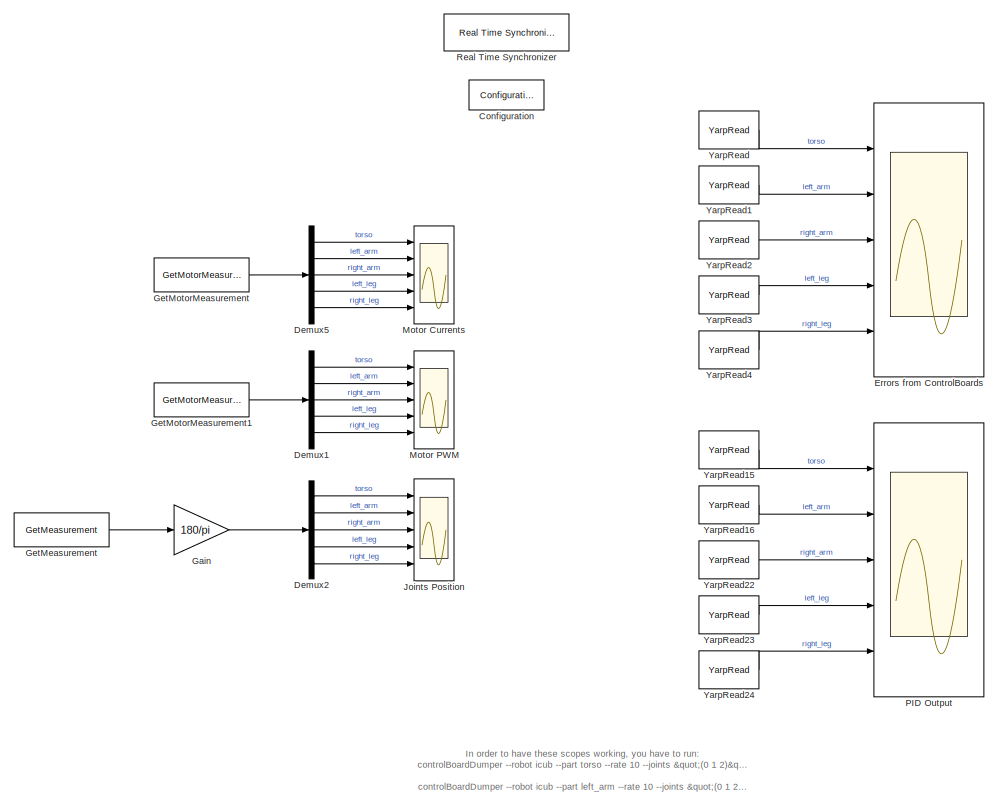
[diagram: root canvas - part 1/2, left side, full height]
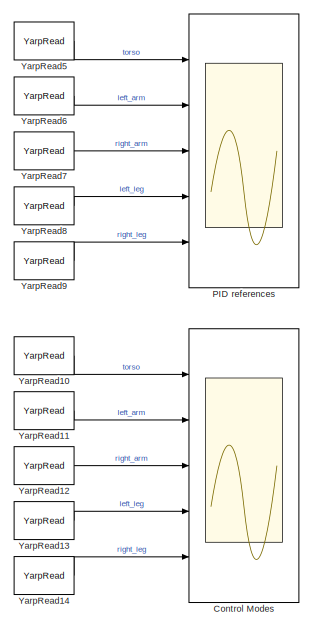
[diagram: root canvas - part 2/2, right side, full height]
MODEL debug_positionControl
KIND model
BLOCK [Reference] Configuration  REF=WBToolboxLibrary/Utilities/Configuration
  ConfigObject = 'WBTConfigRobot'
  ConfigSource = Mask
  ControlBoardsNames = {'torso','left_arm','right_arm','left_leg','right_leg'}
  ControlledJoints = {'torso_pitch','torso_roll','torso_yaw','l_shoulder_pitch','l_shoulder_roll','l_shoulder_yaw','l_elbow','r_shoulder_pitch','r_shoulder_roll','r_shoulder_yaw','r_elbow','l_hip_pitch','l_hip_roll','l_hip_yaw','l_knee','l_ankle_pitch','l_ankle_roll', 'r_hip_pitch','r_hip_roll','r_hip_yaw','r_knee','r_ankle_pitch','r_ankle_roll'}
  GravityVector = [0,0,-9.81]
  LocalName = 'WBT'
  Ports = []
  RTWMemSecDataConstants = Inherit from model
  RTWMemSecDataInternal = Inherit from model
  RTWMemSecDataParameters = Inherit from model
  RTWMemSecFuncExecute = Inherit from model
  RTWMemSecFuncInitTerm = Inherit from model
  RobotName = 'icub'
  SID = 9
  SourceBlock = WBToolboxLibrary/Utilities/Configuration
  SourceProductName = Whole Body Toolbox
  UrdfFile = 'model.urdf'
BLOCK [Scope] Control Modes
  Floating = off
  NumInputPorts = 5
  Ports = [5]
  SID = 50
  ScopeSpecificationString = Simulink.scopes.TimeScopeBlockCfg('CurrentConfiguration', extmgr.ConfigurationSet(extmgr.Configuration('Core','General UI',true),extmgr.Configuration('Core','Source UI',true),extmgr.Configuration('Sources','WiredSimulink',true,'DataLoggingVariableName','ControlModes','DataLogging',true,'DataLoggingSaveFormat','StructureWithTime'),extmgr.Configuration('Visuals','Time Domain',true,'SerializedDisplay...<+4114ch>
BLOCK [Demux] Demux1
  Outputs = [3,4,4,6,6]
  Ports = [1, 5]
  SID = 30
BLOCK [Demux] Demux2
  Outputs = [3,4,4,6,6]
  Ports = [1, 5]
  SID = 31
BLOCK [Demux] Demux5
  Outputs = [3,4,4,6,6]
  Ports = [1, 5]
  SID = 29
BLOCK [Scope] Errors from ControlBoards
  Floating = off
  NumInputPorts = 5
  Ports = [5]
  SID = 10
  ScopeSpecificationString = Simulink.scopes.TimeScopeBlockCfg('CurrentConfiguration', extmgr.ConfigurationSet(extmgr.Configuration('Core','General UI',true),extmgr.Configuration('Core','Source UI',true),extmgr.Configuration('Sources','WiredSimulink',true,'DataLoggingVariableName','ControlBoardsError','DataLogging',true,'DataLoggingSaveFormat','StructureWithTime'),extmgr.Configuration('Visuals','Time Domain',true,'SerializedD...<+4315ch>
BLOCK [Gain] Gain
  Gain = 180/pi
  SID = 43
BLOCK [Reference] GetMeasurement  REF=WBToolboxLibrary/States/GetMeasurement
  Ports = [0, 1]
  RTWMemSecDataConstants = Inherit from model
  RTWMemSecDataInternal = Inherit from model
  RTWMemSecDataParameters = Inherit from model
  RTWMemSecFuncExecute = Inherit from model
  RTWMemSecFuncInitTerm = Inherit from model
  SID = 7
  SourceBlock = WBToolboxLibrary/States/GetMeasurement
  SourceProductName = WholeBodyToolbox
  SourceType = GetMeasurement
  measuredType = Joints Position
BLOCK [Reference] GetMotorMeasurement  REF=WBToolboxLibrary/States/GetMotorMeasurement
  Ports = [0, 1]
  RTWMemSecDataConstants = Inherit from model
  RTWMemSecDataInternal = Inherit from model
  RTWMemSecDataParameters = Inherit from model
  RTWMemSecFuncExecute = Inherit from model
  RTWMemSecFuncInitTerm = Inherit from model
  SID = 3
  SourceBlock = WBToolboxLibrary/States/GetMotorMeasurement
  SourceProductName = WholeBodyToolbox
  SourceType = GetMeasurement
  measuredType = Motor Current
BLOCK [Reference] GetMotorMeasurement1  REF=WBToolboxLibrary/States/GetMotorMeasurement
  Ports = [0, 1]
  RTWMemSecDataConstants = Inherit from model
  RTWMemSecDataInternal = Inherit from model
  RTWMemSecDataParameters = Inherit from model
  RTWMemSecFuncExecute = Inherit from model
  RTWMemSecFuncInitTerm = Inherit from model
  SID = 4
  SourceBlock = WBToolboxLibrary/States/GetMotorMeasurement
  SourceProductName = WholeBodyToolbox
  SourceType = GetMeasurement
  measuredType = Motor PWM
BLOCK [Scope] Joints Position
  Floating = off
  NumInputPorts = 5
  Ports = [5]
  SID = 8
  ScopeSpecificationString = Simulink.scopes.TimeScopeBlockCfg('CurrentConfiguration', extmgr.ConfigurationSet(extmgr.Configuration('Core','General UI',true),extmgr.Configuration('Core','Source UI',true),extmgr.Configuration('Sources','WiredSimulink',true,'DataLoggingVariableName','JointsPosition','DataLogging',true,'DataLoggingSaveFormat','StructureWithTime'),extmgr.Configuration('Visuals','Time Domain',true,'SerializedDispl...<+4502ch>
BLOCK [Scope] Motor Currents
  Floating = off
  NumInputPorts = 5
  Ports = [5]
  SID = 5
  ScopeSpecificationString = Simulink.scopes.TimeScopeBlockCfg('CurrentConfiguration', extmgr.ConfigurationSet(extmgr.Configuration('Core','General UI',true),extmgr.Configuration('Core','Source UI',true),extmgr.Configuration('Sources','WiredSimulink',true,'DataLogging',true,'DataLoggingVariableName','MotorCurrent','DataLoggingSaveFormat','StructureWithTime'),extmgr.Configuration('Visuals','Time Domain',true,'SerializedDisplay...<+4485ch>
BLOCK [Scope] Motor PWM
  Floating = off
  NumInputPorts = 5
  Ports = [5]
  SID = 6
  ScopeSpecificationString = Simulink.scopes.TimeScopeBlockCfg('CurrentConfiguration', extmgr.ConfigurationSet(extmgr.Configuration('Core','General UI',true),extmgr.Configuration('Core','Source UI',true),extmgr.Configuration('Sources','WiredSimulink',true,'DataLoggingVariableName','MotorPwm','DataLogging',true,'DataLoggingSaveFormat','StructureWithTime'),extmgr.Configuration('Visuals','Time Domain',true,'SerializedDisplays',{...<+4802ch>
BLOCK [Scope] PID Output
  Floating = off
  NumInputPorts = 5
  Ports = [5]
  SID = 74
  ScopeSpecificationString = Simulink.scopes.TimeScopeBlockCfg('CurrentConfiguration', extmgr.ConfigurationSet(extmgr.Configuration('Core','General UI',true),extmgr.Configuration('Core','Source UI',true),extmgr.Configuration('Sources','WiredSimulink',true,'DataLoggingVariableName','PIDOutput','DataLogging',true,'DataLoggingSaveFormat','StructureWithTime'),extmgr.Configuration('Visuals','Time Domain',true,'SerializedDisplays',...<+4610ch>
BLOCK [Scope] PID references
  Floating = off
  NumInputPorts = 5
  Ports = [5]
  SID = 22
  ScopeSpecificationString = Simulink.scopes.TimeScopeBlockCfg('CurrentConfiguration', extmgr.ConfigurationSet(extmgr.Configuration('Core','General UI',true),extmgr.Configuration('Core','Source UI',true),extmgr.Configuration('Sources','WiredSimulink',true,'DataLoggingVariableName','PositionPIDReference','DataLogging',true,'DataLoggingSaveFormat','StructureWithTime'),extmgr.Configuration('Visuals','Time Domain',true,'Serialize...<+4182ch>
BLOCK [Reference] Real Time Synchronizer  REF=WBToolboxLibrary/Utilities/Real Time Synchronizer
  MultiThreadCoSim = auto
  Ports = []
  SID = 2
  SourceBlock = WBToolboxLibrary/Utilities/Real Time Synchronizer
  SourceProductName = Whole Body Toolbox
  SourceType = Real Time Synchronizer
  period = 0.01
BLOCK [Reference] YarpRead  REF=WBToolboxLibrary/Utilities/YarpRead
  MultiThreadCoSim = auto
  Ports = [0, 1]
  SID = 16
  SourceBlock = WBToolboxLibrary/Utilities/YarpRead
  SourceProductName = WholeBodyToolbox
  SourceType = YARP Read
  autoconnect = on
  blocking = off
  errorOnConnection = on
  portName = '/controlBoardDumper/torso/getPositionErrors'
  signalSize = 3
  timeout = 0.5
  timestamp = off
BLOCK [Reference] YarpRead1  REF=WBToolboxLibrary/Utilities/YarpRead
  MultiThreadCoSim = auto
  Ports = [0, 1]
  SID = 17
  SourceBlock = WBToolboxLibrary/Utilities/YarpRead
  SourceProductName = WholeBodyToolbox
  SourceType = YARP Read
  autoconnect = on
  blocking = off
  errorOnConnection = on
  portName = '/controlBoardDumper/left_arm/getPositionErrors'
  signalSize = 4
  timeout = 0.5
  timestamp = off
BLOCK [Reference] YarpRead10  REF=WBToolboxLibrary/Utilities/YarpRead
  MultiThreadCoSim = auto
  Ports = [0, 1]
  SID = 52
  SourceBlock = WBToolboxLibrary/Utilities/YarpRead
  SourceProductName = WholeBodyToolbox
  SourceType = YARP Read
  autoconnect = on
  blocking = off
  errorOnConnection = on
  portName = '/controlBoardDumper/torso/getControlModes'
  signalSize = 3
  timeout = 0.5
  timestamp = off
BLOCK [Reference] YarpRead11  REF=WBToolboxLibrary/Utilities/YarpRead
  MultiThreadCoSim = auto
  Ports = [0, 1]
  SID = 53
  SourceBlock = WBToolboxLibrary/Utilities/YarpRead
  SourceProductName = WholeBodyToolbox
  SourceType = YARP Read
  autoconnect = on
  blocking = off
  errorOnConnection = on
  portName = '/controlBoardDumper/left_arm/getControlModes'
  signalSize = 4
  timeout = 0.5
  timestamp = off
BLOCK [Reference] YarpRead12  REF=WBToolboxLibrary/Utilities/YarpRead
  MultiThreadCoSim = auto
  Ports = [0, 1]
  SID = 54
  SourceBlock = WBToolboxLibrary/Utilities/YarpRead
  SourceProductName = WholeBodyToolbox
  SourceType = YARP Read
  autoconnect = on
  blocking = off
  errorOnConnection = on
  portName = '/controlBoardDumper/right_arm/getControlModes'
  signalSize = 4
  timeout = 0.5
  timestamp = off
BLOCK [Reference] YarpRead13  REF=WBToolboxLibrary/Utilities/YarpRead
  MultiThreadCoSim = auto
  Ports = [0, 1]
  SID = 55
  SourceBlock = WBToolboxLibrary/Utilities/YarpRead
  SourceProductName = WholeBodyToolbox
  SourceType = YARP Read
  autoconnect = on
  blocking = off
  errorOnConnection = on
  portName = '/controlBoardDumper/left_leg/getControlModes'
  signalSize = 6
  timeout = 0.5
  timestamp = off
BLOCK [Reference] YarpRead14  REF=WBToolboxLibrary/Utilities/YarpRead
  MultiThreadCoSim = auto
  Ports = [0, 1]
  SID = 56
  SourceBlock = WBToolboxLibrary/Utilities/YarpRead
  SourceProductName = WholeBodyToolbox
  SourceType = YARP Read
  autoconnect = on
  blocking = off
  errorOnConnection = on
  portName = '/controlBoardDumper/right_leg/getControlModes'
  signalSize = 6
  timeout = 0.5
  timestamp = off
BLOCK [Reference] YarpRead15  REF=WBToolboxLibrary/Utilities/YarpRead
  MultiThreadCoSim = auto
  Ports = [0, 1]
  SID = 77
  SourceBlock = WBToolboxLibrary/Utilities/YarpRead
  SourceProductName = WholeBodyToolbox
  SourceType = YARP Read
  autoconnect = on
  blocking = off
  errorOnConnection = on
  portName = '/controlBoardDumper/torso/getOutputs'
  signalSize = 3
  timeout = 0.5
  timestamp = off
BLOCK [Reference] YarpRead16  REF=WBToolboxLibrary/Utilities/YarpRead
  MultiThreadCoSim = auto
  Ports = [0, 1]
  SID = 78
  SourceBlock = WBToolboxLibrary/Utilities/YarpRead
  SourceProductName = WholeBodyToolbox
  SourceType = YARP Read
  autoconnect = on
  blocking = off
  errorOnConnection = on
  portName = '/controlBoardDumper/left_arm/getOutputs'
  signalSize = 4
  timeout = 0.5
  timestamp = off
BLOCK [Reference] YarpRead2  REF=WBToolboxLibrary/Utilities/YarpRead
  MultiThreadCoSim = auto
  Ports = [0, 1]
  SID = 21
  SourceBlock = WBToolboxLibrary/Utilities/YarpRead
  SourceProductName = WholeBodyToolbox
  SourceType = YARP Read
  autoconnect = on
  blocking = off
  errorOnConnection = on
  portName = '/controlBoardDumper/right_arm/getPositionErrors'
  signalSize = 4
  timeout = 0.5
  timestamp = off
BLOCK [Reference] YarpRead22  REF=WBToolboxLibrary/Utilities/YarpRead
  MultiThreadCoSim = auto
  Ports = [0, 1]
  SID = 84
  SourceBlock = WBToolboxLibrary/Utilities/YarpRead
  SourceProductName = WholeBodyToolbox
  SourceType = YARP Read
  autoconnect = on
  blocking = off
  errorOnConnection = on
  portName = '/controlBoardDumper/right_arm/getOutputs'
  signalSize = 4
  timeout = 0.5
  timestamp = off
BLOCK [Reference] YarpRead23  REF=WBToolboxLibrary/Utilities/YarpRead
  MultiThreadCoSim = auto
  Ports = [0, 1]
  SID = 85
  SourceBlock = WBToolboxLibrary/Utilities/YarpRead
  SourceProductName = WholeBodyToolbox
  SourceType = YARP Read
  autoconnect = on
  blocking = off
  errorOnConnection = on
  portName = '/controlBoardDumper/left_leg/getOutputs'
  signalSize = 6
  timeout = 0.5
  timestamp = off
BLOCK [Reference] YarpRead24  REF=WBToolboxLibrary/Utilities/YarpRead
  MultiThreadCoSim = auto
  Ports = [0, 1]
  SID = 86
  SourceBlock = WBToolboxLibrary/Utilities/YarpRead
  SourceProductName = WholeBodyToolbox
  SourceType = YARP Read
  autoconnect = on
  blocking = off
  errorOnConnection = on
  portName = '/controlBoardDumper/right_leg/getOutputs'
  signalSize = 6
  timeout = 0.5
  timestamp = off
BLOCK [Reference] YarpRead3  REF=WBToolboxLibrary/Utilities/YarpRead
  MultiThreadCoSim = auto
  Ports = [0, 1]
  SID = 19
  SourceBlock = WBToolboxLibrary/Utilities/YarpRead
  SourceProductName = WholeBodyToolbox
  SourceType = YARP Read
  autoconnect = on
  blocking = off
  errorOnConnection = on
  portName = '/controlBoardDumper/left_leg/getPositionErrors'
  signalSize = 6
  timeout = 0.5
  timestamp = off
BLOCK [Reference] YarpRead4  REF=WBToolboxLibrary/Utilities/YarpRead
  MultiThreadCoSim = auto
  Ports = [0, 1]
  SID = 20
  SourceBlock = WBToolboxLibrary/Utilities/YarpRead
  SourceProductName = WholeBodyToolbox
  SourceType = YARP Read
  autoconnect = on
  blocking = off
  errorOnConnection = on
  portName = '/controlBoardDumper/right_leg/getPositionErrors'
  signalSize = 6
  timeout = 0.5
  timestamp = off
BLOCK [Reference] YarpRead5  REF=WBToolboxLibrary/Utilities/YarpRead
  MultiThreadCoSim = auto
  Ports = [0, 1]
  SID = 23
  SourceBlock = WBToolboxLibrary/Utilities/YarpRead
  SourceProductName = WholeBodyToolbox
  SourceType = YARP Read
  autoconnect = on
  blocking = off
  errorOnConnection = on
  portName = '/controlBoardDumper/torso/getPosPidReferences'
  signalSize = 3
  timeout = 0.5
  timestamp = off
BLOCK [Reference] YarpRead6  REF=WBToolboxLibrary/Utilities/YarpRead
  MultiThreadCoSim = auto
  Ports = [0, 1]
  SID = 24
  SourceBlock = WBToolboxLibrary/Utilities/YarpRead
  SourceProductName = WholeBodyToolbox
  SourceType = YARP Read
  autoconnect = on
  blocking = off
  errorOnConnection = on
  portName = '/controlBoardDumper/left_arm/getPosPidReferences'
  signalSize = 4
  timeout = 0.5
  timestamp = off
BLOCK [Reference] YarpRead7  REF=WBToolboxLibrary/Utilities/YarpRead
  MultiThreadCoSim = auto
  Ports = [0, 1]
  SID = 25
  SourceBlock = WBToolboxLibrary/Utilities/YarpRead
  SourceProductName = WholeBodyToolbox
  SourceType = YARP Read
  autoconnect = on
  blocking = off
  errorOnConnection = on
  portName = '/controlBoardDumper/right_arm/getPosPidReferences'
  signalSize = 4
  timeout = 0.5
  timestamp = off
BLOCK [Reference] YarpRead8  REF=WBToolboxLibrary/Utilities/YarpRead
  MultiThreadCoSim = auto
  Ports = [0, 1]
  SID = 26
  SourceBlock = WBToolboxLibrary/Utilities/YarpRead
  SourceProductName = WholeBodyToolbox
  SourceType = YARP Read
  autoconnect = on
  blocking = off
  errorOnConnection = on
  portName = '/controlBoardDumper/left_leg/getPosPidReferences'
  signalSize = 6
  timeout = 0.5
  timestamp = off
BLOCK [Reference] YarpRead9  REF=WBToolboxLibrary/Utilities/YarpRead
  MultiThreadCoSim = auto
  Ports = [0, 1]
  SID = 27
  SourceBlock = WBToolboxLibrary/Utilities/YarpRead
  SourceProductName = WholeBodyToolbox
  SourceType = YARP Read
  autoconnect = on
  blocking = off
  errorOnConnection = on
  portName = '/controlBoardDumper/right_leg/getPosPidReferences'
  signalSize = 6
  timeout = 0.5
  timestamp = off
ANNOTATION (root): \n \n In order to have these scopes working, you have to run: controlBoardDumper --robot icub --part torso --rate 10 --joints "(0 1 2)" --dataToDump "(getPosPidReferences getPositionErrors getControlModes getOutputs )" \n controlBoardDumper --robot icub --part left_arm --rate 10 --joints "(0 1 2 3)" --dataToDump "(getPosPidReferences getPositionErrors getControlModes getOutputs )" \n controlBoardD...<+1417ch>
LINE Demux1:1 -> Motor PWM:1
LINE Demux1:2 -> Motor PWM:2
LINE Demux1:3 -> Motor PWM:3
LINE Demux1:4 -> Motor PWM:4
LINE Demux1:5 -> Motor PWM:5
LINE Demux2:1 -> Joints Position:1
LINE Demux2:2 -> Joints Position:2
LINE Demux2:3 -> Joints Position:3
LINE Demux2:4 -> Joints Position:4
LINE Demux2:5 -> Joints Position:5
LINE Demux5:1 -> Motor Currents:1
LINE Demux5:2 -> Motor Currents:2
LINE Demux5:3 -> Motor Currents:3
LINE Demux5:4 -> Motor Currents:4
LINE Demux5:5 -> Motor Currents:5
LINE Gain:1 -> Demux2:1
LINE GetMeasurement:1 -> Gain:1
LINE GetMotorMeasurement1:1 -> Demux1:1
LINE GetMotorMeasurement:1 -> Demux5:1
LINE YarpRead10:1 -> Control Modes:1
LINE YarpRead11:1 -> Control Modes:2
LINE YarpRead12:1 -> Control Modes:3
LINE YarpRead13:1 -> Control Modes:4
LINE YarpRead14:1 -> Control Modes:5
LINE YarpRead15:1 -> PID Output:1
LINE YarpRead16:1 -> PID Output:2
LINE YarpRead1:1 -> Errors from ControlBoards:2
LINE YarpRead22:1 -> PID Output:3
LINE YarpRead23:1 -> PID Output:4
LINE YarpRead24:1 -> PID Output:5
LINE YarpRead2:1 -> Errors from ControlBoards:3
LINE YarpRead3:1 -> Errors from ControlBoards:4
LINE YarpRead4:1 -> Errors from ControlBoards:5
LINE YarpRead5:1 -> PID references:1
LINE YarpRead6:1 -> PID references:2
LINE YarpRead7:1 -> PID references:3
LINE YarpRead8:1 -> PID references:4
LINE YarpRead9:1 -> PID references:5
LINE YarpRead:1 -> Errors from ControlBoards:1
